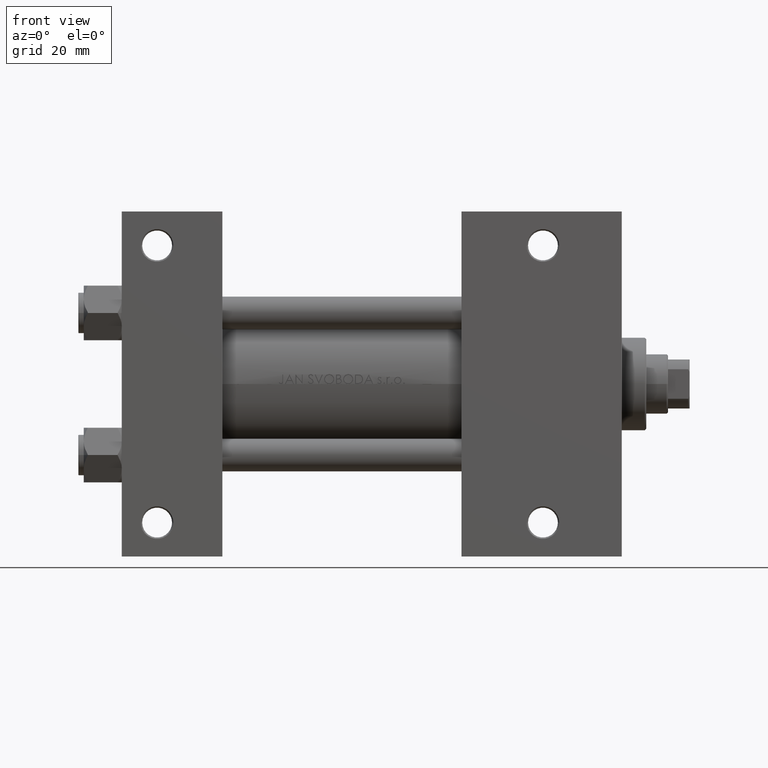
[diagram: clean part render]
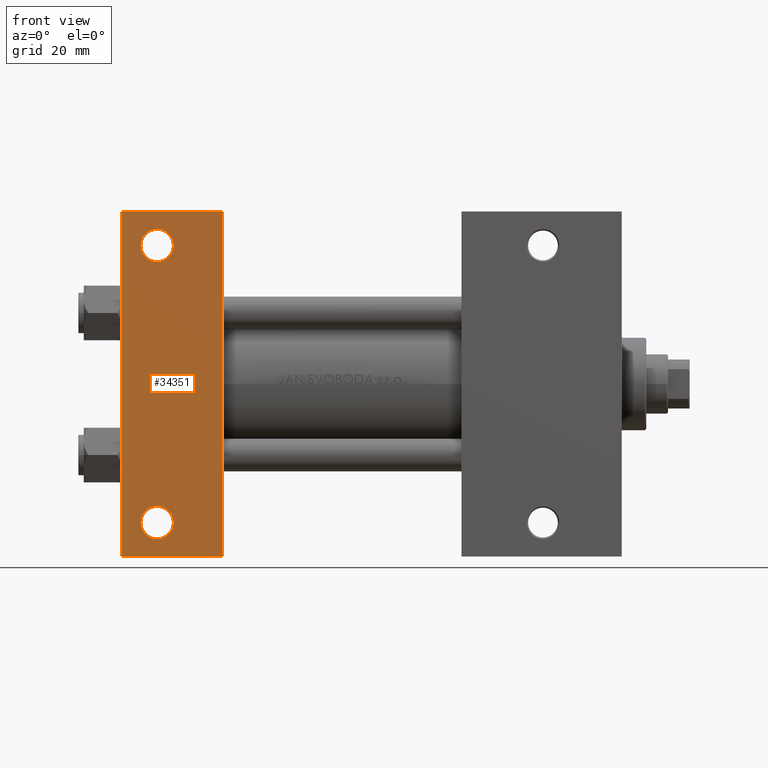
[diagram: same view with one face highlighted and labeled with its STEP entity id]
A machine part, front view. The second image highlights one B-rep face of the part: STEP entity #34351.
In plain terms, the highlighted planar face has unit normal (0, -1, -0).
Its self-contained STEP definition (entity closure, byte-faithful):
#326 = DIRECTION ( 'NONE',  ( -0.000000000000000000, -9.251858538542972814E-17, 1.000000000000000000 ) ) ;
#1819 = EDGE_LOOP ( 'NONE', ( #18626, #16521, #42946, #45995 ) ) ;
#1870 = CARTESIAN_POINT ( 'NONE',  ( 37.00000000000000000, -63.50000000000000000, -37.49999999999999289 ) ) ;
#2592 = DIRECTION ( 'NONE',  ( 0.000000000000000000, 1.000000000000000000, 0.000000000000000000 ) ) ;
#3168 = EDGE_CURVE ( 'NONE', #6185, #9855, #32775, .T. ) ;
#3931 = DIRECTION ( 'NONE',  ( 0.000000000000000000, -1.000000000000000000, -9.251858538542972814E-17 ) ) ;
#3945 = LINE ( 'NONE', #42291, #47474 ) ;
#4147 = LINE ( 'NONE', #22835, #29981 ) ;
#4530 = CIRCLE ( 'NONE', #11683, 5.999499999999962974 ) ;
#4565 = DIRECTION ( 'NONE',  ( 0.000000000000000000, 1.000000000000000000, 0.000000000000000000 ) ) ;
#4811 = CARTESIAN_POINT ( 'NONE',  ( 12.99999999999999822, 50.99999999999997868, -37.50000000000000000 ) ) ;
#5741 = FACE_BOUND ( 'NONE', #30700, .T. ) ;
#5763 = EDGE_CURVE ( 'NONE', #37472, #37110, #33479, .T. ) ;
#6185 = VERTEX_POINT ( 'NONE', #1870 ) ;
#8523 = CARTESIAN_POINT ( 'NONE',  ( 18.99949999999996209, 50.99999999999997868, -37.50000000000000000 ) ) ;
#8753 = ORIENTED_EDGE ( 'NONE', *, *, #13474, .T. ) ;
#8951 = CIRCLE ( 'NONE', #43144, 5.999499999999962974 ) ;
#9452 = CARTESIAN_POINT ( 'NONE',  ( 7.000500000000034362, 50.99999999999997868, -37.50000000000000000 ) ) ;
#9744 = VECTOR ( 'NONE', #22076, 1000.000000000000000 ) ;
#9855 = VERTEX_POINT ( 'NONE', #18460 ) ;
#11683 = AXIS2_PLACEMENT_3D ( 'NONE', #4811, #326, #4565 ) ;
#11737 = EDGE_CURVE ( 'NONE', #25563, #9855, #20130, .T. ) ;
#12025 = AXIS2_PLACEMENT_3D ( 'NONE', #30353, #14929, #18672 ) ;
#13029 = EDGE_CURVE ( 'NONE', #44401, #15903, #8951, .T. ) ;
#13474 = EDGE_CURVE ( 'NONE', #15903, #44401, #47125, .T. ) ;
#14142 = ORIENTED_EDGE ( 'NONE', *, *, #13029, .T. ) ;
#14151 = ORIENTED_EDGE ( 'NONE', *, *, #41010, .T. ) ;
#14929 = DIRECTION ( 'NONE',  ( -0.000000000000000000, -9.251858538542972814E-17, 1.000000000000000000 ) ) ;
#15903 = VERTEX_POINT ( 'NONE', #31073 ) ;
#16476 = FACE_OUTER_BOUND ( 'NONE', #1819, .T. ) ;
#16521 = ORIENTED_EDGE ( 'NONE', *, *, #40188, .T. ) ;
#18460 = CARTESIAN_POINT ( 'NONE',  ( 3.977209754999747208E-16, -63.50000000000000000, -37.49999999999999289 ) ) ;
#18626 = ORIENTED_EDGE ( 'NONE', *, *, #11737, .F. ) ;
#18672 = DIRECTION ( 'NONE',  ( 0.000000000000000000, 1.000000000000000000, 0.000000000000000000 ) ) ;
#20130 = LINE ( 'NONE', #34544, #25636 ) ;
#22076 = DIRECTION ( 'NONE',  ( -1.000000000000000000, -0.000000000000000000, -0.000000000000000000 ) ) ;
#22835 = CARTESIAN_POINT ( 'NONE',  ( 37.00000000000000000, 37.49999999999999289, -37.50000000000000000 ) ) ;
#23086 = DIRECTION ( 'NONE',  ( 0.000000000000000000, -1.000000000000000000, -9.251858538542972814E-17 ) ) ;
#24903 = AXIS2_PLACEMENT_3D ( 'NONE', #41872, #27424, #42600 ) ;
#24931 = DIRECTION ( 'NONE',  ( 0.000000000000000000, 1.000000000000000000, 9.251858538542972814E-17 ) ) ;
#25563 = VERTEX_POINT ( 'NONE', #44095 ) ;
#25636 = VECTOR ( 'NONE', #3931, 1000.000000000000000 ) ;
#26139 = DIRECTION ( 'NONE',  ( 1.000000000000000000, 0.000000000000000000, 0.000000000000000000 ) ) ;
#27307 = EDGE_CURVE ( 'NONE', #41809, #6185, #4147, .T. ) ;
#27424 = DIRECTION ( 'NONE',  ( -0.000000000000000000, -9.251858538542972814E-17, 1.000000000000000000 ) ) ;
#28297 = AXIS2_PLACEMENT_3D ( 'NONE', #28650, #43826, #24931 ) ;
#28650 = CARTESIAN_POINT ( 'NONE',  ( 37.00000000000000000, 37.49999999999999289, -37.50000000000000000 ) ) ;
#29981 = VECTOR ( 'NONE', #23086, 1000.000000000000000 ) ;
#30353 = CARTESIAN_POINT ( 'NONE',  ( 12.99999999999999822, 50.99999999999997868, -37.50000000000000000 ) ) ;
#30700 = EDGE_LOOP ( 'NONE', ( #8753, #14142 ) ) ;
#31073 = CARTESIAN_POINT ( 'NONE',  ( 7.000500000000034362, -51.00000000000000711, -37.50000000000000711 ) ) ;
#32613 = PLANE ( 'NONE',  #28297 ) ;
#32775 = LINE ( 'NONE', #40985, #9744 ) ;
#32978 = DIRECTION ( 'NONE',  ( -0.000000000000000000, -9.251858538542972814E-17, 1.000000000000000000 ) ) ;
#33479 = CIRCLE ( 'NONE', #12025, 5.999499999999962974 ) ;
#34351 = ADVANCED_FACE ( 'NONE', ( #39855, #5741, #16476 ), #32613, .T. ) ;
#34544 = CARTESIAN_POINT ( 'NONE',  ( 0.000000000000000000, 37.49999999999999289, -37.50000000000000000 ) ) ;
#36714 = CARTESIAN_POINT ( 'NONE',  ( 12.99999999999999822, -51.00000000000000711, -37.50000000000000711 ) ) ;
#37110 = VERTEX_POINT ( 'NONE', #8523 ) ;
#37472 = VERTEX_POINT ( 'NONE', #9452 ) ;
#39855 = FACE_BOUND ( 'NONE', #45697, .T. ) ;
#40188 = EDGE_CURVE ( 'NONE', #25563, #41809, #3945, .T. ) ;
#40985 = CARTESIAN_POINT ( 'NONE',  ( 3.977209754999747208E-16, -63.50000000000000000, -37.49999999999999289 ) ) ;
#41010 = EDGE_CURVE ( 'NONE', #37110, #37472, #4530, .T. ) ;
#41809 = VERTEX_POINT ( 'NONE', #46338 ) ;
#41872 = CARTESIAN_POINT ( 'NONE',  ( 12.99999999999999822, -51.00000000000000711, -37.50000000000000711 ) ) ;
#42291 = CARTESIAN_POINT ( 'NONE',  ( 1.595073532467135441E-14, 63.50000000000000000, -37.50000000000002132 ) ) ;
#42600 = DIRECTION ( 'NONE',  ( 0.000000000000000000, 1.000000000000000000, 0.000000000000000000 ) ) ;
#42651 = CARTESIAN_POINT ( 'NONE',  ( 18.99949999999996209, -51.00000000000000711, -37.50000000000000711 ) ) ;
#42946 = ORIENTED_EDGE ( 'NONE', *, *, #27307, .T. ) ;
#43144 = AXIS2_PLACEMENT_3D ( 'NONE', #36714, #32978, #2592 ) ;
#43826 = DIRECTION ( 'NONE',  ( 0.000000000000000000, 9.251858538542972814E-17, -1.000000000000000000 ) ) ;
#44095 = CARTESIAN_POINT ( 'NONE',  ( 1.595073532467135441E-14, 63.50000000000000000, -37.50000000000002132 ) ) ;
#44401 = VERTEX_POINT ( 'NONE', #42651 ) ;
#45697 = EDGE_LOOP ( 'NONE', ( #45830, #14151 ) ) ;
#45830 = ORIENTED_EDGE ( 'NONE', *, *, #5763, .T. ) ;
#45995 = ORIENTED_EDGE ( 'NONE', *, *, #3168, .T. ) ;
#46338 = CARTESIAN_POINT ( 'NONE',  ( 37.00000000000001421, 63.50000000000000000, -37.50000000000002132 ) ) ;
#47125 = CIRCLE ( 'NONE', #24903, 5.999499999999962974 ) ;
#47474 = VECTOR ( 'NONE', #26139, 1000.000000000000000 ) ;